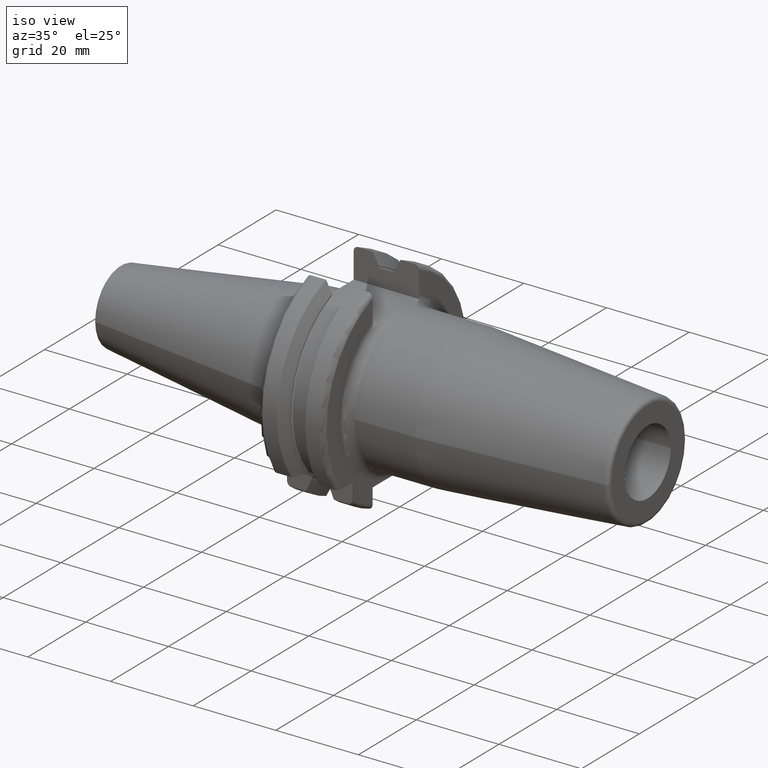
[diagram: clean part render]
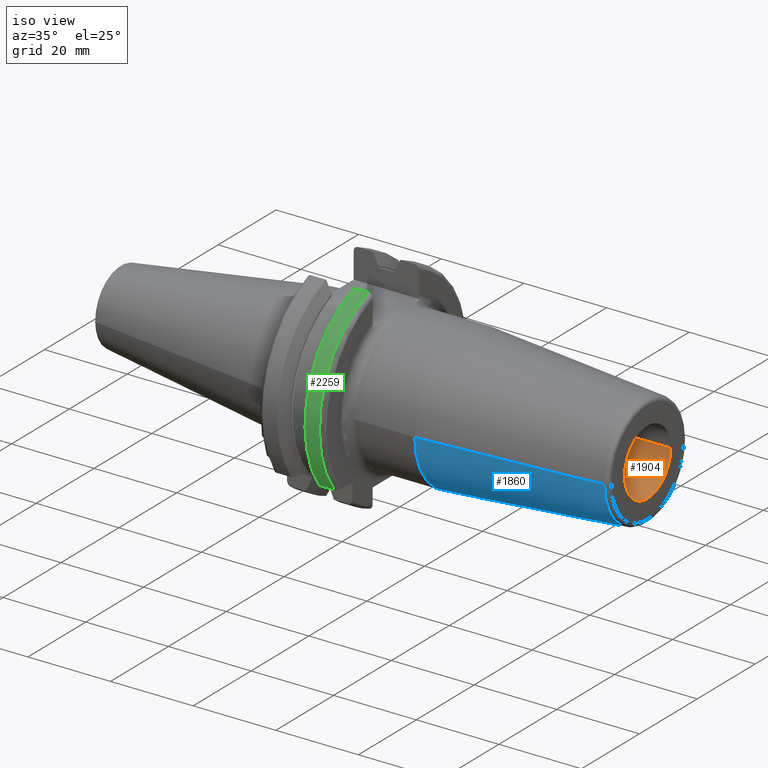
[diagram: same view with three faces highlighted in distinct colors, each labeled with its STEP entity id]
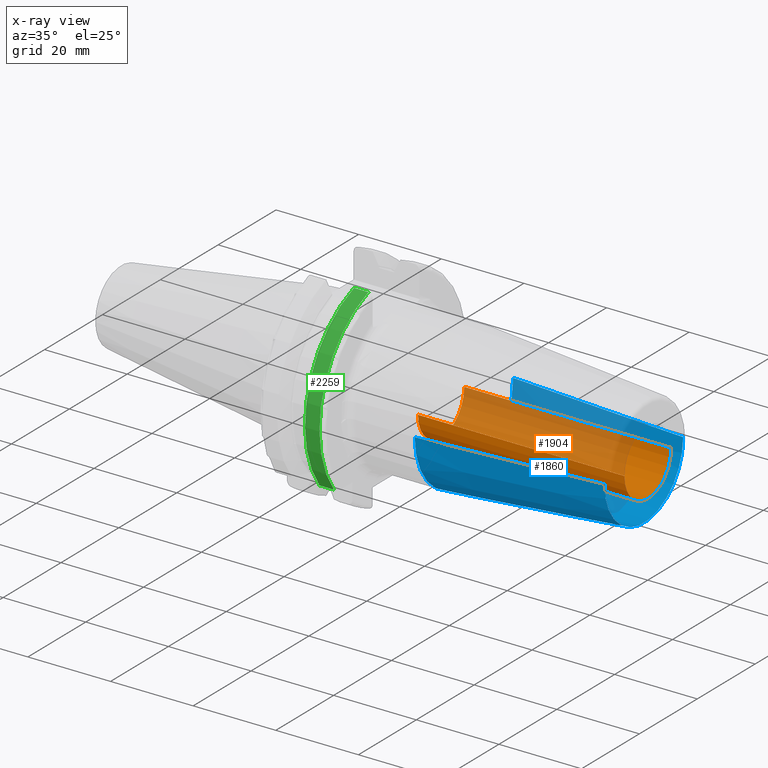
[diagram: x-ray of the same camera — body ghosted, the three highlighted faces saturated]
A machine part, iso view with three faces highlighted in distinct colors.
The next image is the same camera in x-ray (body ghosted, the three faces saturated) — at least one of them is partly hidden behind the body in this view.
Their STEP definitions:

[orange] entity #1904 — the highlighted cylindrical surface (partial cylindrical patch) has radius 8 mm, axis along (1, 0, 0).
#312=CARTESIAN_POINT('',(8.E1,0.E0,0.E0));
#313=DIRECTION('',(-1.E0,0.E0,0.E0));
#314=DIRECTION('',(0.E0,1.E0,0.E0));
#315=AXIS2_PLACEMENT_3D('',#312,#313,#314);
#332=DIRECTION('',(1.E0,0.E0,0.E0));
#333=VECTOR('',#332,5.E1);
#334=CARTESIAN_POINT('',(3.E1,8.E0,0.E0));
#335=LINE('',#334,#333);
#336=DIRECTION('',(1.E0,0.E0,0.E0));
#337=VECTOR('',#336,5.E1);
#338=CARTESIAN_POINT('',(3.E1,-8.E0,0.E0));
#339=LINE('',#338,#337);
#340=CARTESIAN_POINT('',(3.E1,0.E0,0.E0));
#341=DIRECTION('',(-1.E0,0.E0,0.E0));
#342=DIRECTION('',(0.E0,1.E0,0.E0));
#343=AXIS2_PLACEMENT_3D('',#340,#341,#342);
#1431=CARTESIAN_POINT('',(3.E1,8.E0,0.E0));
#1432=CARTESIAN_POINT('',(8.E1,8.E0,0.E0));
#1433=VERTEX_POINT('',#1431);
#1434=VERTEX_POINT('',#1432);
#1435=CARTESIAN_POINT('',(3.E1,-8.E0,0.E0));
#1436=CARTESIAN_POINT('',(8.E1,-8.E0,0.E0));
#1437=VERTEX_POINT('',#1435);
#1438=VERTEX_POINT('',#1436);
#1892=CARTESIAN_POINT('',(1.60025E1,0.E0,0.E0));
#1893=DIRECTION('',(1.E0,0.E0,0.E0));
#1894=DIRECTION('',(0.E0,-1.E0,0.E0));
#1895=AXIS2_PLACEMENT_3D('',#1892,#1893,#1894);
#1896=CYLINDRICAL_SURFACE('',#1895,8.E0);
#1897=ORIENTED_EDGE('',*,*,#1882,.T.);
#1898=ORIENTED_EDGE('',*,*,#1872,.T.);
#1899=ORIENTED_EDGE('',*,*,#1886,.F.);
#1901=ORIENTED_EDGE('',*,*,#1900,.F.);
#1902=EDGE_LOOP('',(#1897,#1898,#1899,#1901));
#1903=FACE_OUTER_BOUND('',#1902,.F.);
#1904=ADVANCED_FACE('',(#1903),#1896,.F.);
#316=CIRCLE('',#315,8.E0);
#344=CIRCLE('',#343,8.E0);
#1872=EDGE_CURVE('',#1434,#1438,#316,.T.);
#1882=EDGE_CURVE('',#1433,#1434,#335,.T.);
#1886=EDGE_CURVE('',#1437,#1438,#339,.T.);
#1900=EDGE_CURVE('',#1433,#1437,#344,.T.);

[blue] entity #1860 — the highlighted conical surface has half-angle 4.5 deg.
#242=CARTESIAN_POINT('',(3.552828342339E1,0.E0,0.E0));
#243=DIRECTION('',(-1.E0,0.E0,0.E0));
#244=DIRECTION('',(0.E0,1.E0,0.E0));
#245=AXIS2_PLACEMENT_3D('',#242,#243,#244);
#294=CARTESIAN_POINT('',(7.907845909573E1,0.E0,0.E0));
#295=DIRECTION('',(-1.E0,0.E0,0.E0));
#296=DIRECTION('',(0.E0,1.E0,0.E0));
#297=AXIS2_PLACEMENT_3D('',#294,#295,#296);
#299=DIRECTION('',(-9.969173337331E-1,7.845909572785E-2,2.010372931682E-13));
#300=VECTOR('',#299,4.368484145948E1);
#301=CARTESIAN_POINT('',(7.907845909573E1,1.357252684207E1,
-8.780200379939E-12));
#302=LINE('',#301,#300);
#303=DIRECTION('',(-9.969173337331E-1,-7.845909572785E-2,-2.010277809719E-13));
#304=VECTOR('',#303,4.368484145948E1);
#305=CARTESIAN_POINT('',(7.907845909573E1,-1.357252684207E1,
8.779784841150E-12));
#306=LINE('',#305,#304);
#1439=CARTESIAN_POINT('',(7.907845909573E1,1.357252684207E1,0.E0));
#1440=CARTESIAN_POINT('',(7.907845909573E1,-1.357252684207E1,0.E0));
#1441=VERTEX_POINT('',#1439);
#1442=VERTEX_POINT('',#1440);
#1447=CARTESIAN_POINT('',(3.552828342339E1,1.7E1,0.E0));
#1448=CARTESIAN_POINT('',(3.552828342339E1,-1.7E1,0.E0));
#1449=VERTEX_POINT('',#1447);
#1450=VERTEX_POINT('',#1448);
#1849=CARTESIAN_POINT('',(5.730337125956E1,0.E0,0.E0));
#1850=DIRECTION('',(-1.E0,0.E0,0.E0));
#1851=DIRECTION('',(0.E0,1.E0,0.E0));
#1852=AXIS2_PLACEMENT_3D('',#1849,#1850,#1851);
#1853=CONICAL_SURFACE('',#1852,1.528626342104E1,4.5E0);
#1854=ORIENTED_EDGE('',*,*,#1840,.F.);
#1855=ORIENTED_EDGE('',*,*,#1815,.T.);
#1856=ORIENTED_EDGE('',*,*,#1770,.T.);
#1857=ORIENTED_EDGE('',*,*,#1812,.F.);
#1858=EDGE_LOOP('',(#1854,#1855,#1856,#1857));
#1859=FACE_OUTER_BOUND('',#1858,.F.);
#1860=ADVANCED_FACE('',(#1859),#1853,.T.);
#246=CIRCLE('',#245,1.7E1);
#298=CIRCLE('',#297,1.357252684207E1);
#1770=EDGE_CURVE('',#1449,#1450,#246,.T.);
#1812=EDGE_CURVE('',#1442,#1450,#306,.T.);
#1815=EDGE_CURVE('',#1441,#1449,#302,.T.);
#1840=EDGE_CURVE('',#1441,#1442,#298,.T.);

[green] entity #2259 — the highlighted cylindrical surface (partial cylindrical patch) has radius 24.99 mm, axis along (1, 0, 0).
#582=DIRECTION('',(1.E0,0.E0,0.E0));
#583=VECTOR('',#582,3.503274427933E0);
#584=CARTESIAN_POINT('',(1.454672557207E1,-1.998749859287E1,-1.5E1));
#585=LINE('',#584,#583);
#586=CARTESIAN_POINT('',(1.454672557207E1,0.E0,0.E0));
#587=DIRECTION('',(-1.E0,0.E0,0.E0));
#588=DIRECTION('',(0.E0,-7.998198716635E-1,-6.002400960384E-1));
#589=AXIS2_PLACEMENT_3D('',#586,#587,#588);
#591=DIRECTION('',(1.E0,0.E0,0.E0));
#592=VECTOR('',#591,3.503274427933E0);
#593=CARTESIAN_POINT('',(1.454672557207E1,-8.05E0,2.365792890344E1));
#594=LINE('',#593,#592);
#640=CARTESIAN_POINT('',(1.454672557207E1,-1.998749859287E1,-1.5E1));
#652=CARTESIAN_POINT('',(1.454672557207E1,-8.05E0,2.365792890344E1));
#827=CARTESIAN_POINT('',(1.805E1,0.E0,0.E0));
#828=DIRECTION('',(-1.E0,0.E0,0.E0));
#829=DIRECTION('',(0.E0,-7.998198716635E-1,-6.002400960384E-1));
#830=AXIS2_PLACEMENT_3D('',#827,#828,#829);
#1341=VERTEX_POINT('',#652);
#1360=VERTEX_POINT('',#640);
#1381=CARTESIAN_POINT('',(1.805E1,-8.05E0,2.365792890344E1));
#1382=VERTEX_POINT('',#1381);
#1427=CARTESIAN_POINT('',(1.805E1,-1.998749859287E1,-1.5E1));
#1428=VERTEX_POINT('',#1427);
#2244=CARTESIAN_POINT('',(-5.0985E1,0.E0,0.E0));
#2245=DIRECTION('',(1.E0,0.E0,0.E0));
#2246=DIRECTION('',(0.E0,-1.E0,0.E0));
#2247=AXIS2_PLACEMENT_3D('',#2244,#2245,#2246);
#2248=CYLINDRICAL_SURFACE('',#2247,2.499E1);
#2250=ORIENTED_EDGE('',*,*,#2249,.F.);
#2252=ORIENTED_EDGE('',*,*,#2251,.F.);
#2254=ORIENTED_EDGE('',*,*,#2253,.T.);
#2256=ORIENTED_EDGE('',*,*,#2255,.T.);
#2257=EDGE_LOOP('',(#2250,#2252,#2254,#2256));
#2258=FACE_OUTER_BOUND('',#2257,.F.);
#2259=ADVANCED_FACE('',(#2258),#2248,.T.);
#590=CIRCLE('',#589,2.499E1);
#831=CIRCLE('',#830,2.499E1);
#2249=EDGE_CURVE('',#1428,#1382,#831,.T.);
#2251=EDGE_CURVE('',#1360,#1428,#585,.T.);
#2253=EDGE_CURVE('',#1360,#1341,#590,.T.);
#2255=EDGE_CURVE('',#1341,#1382,#594,.T.);